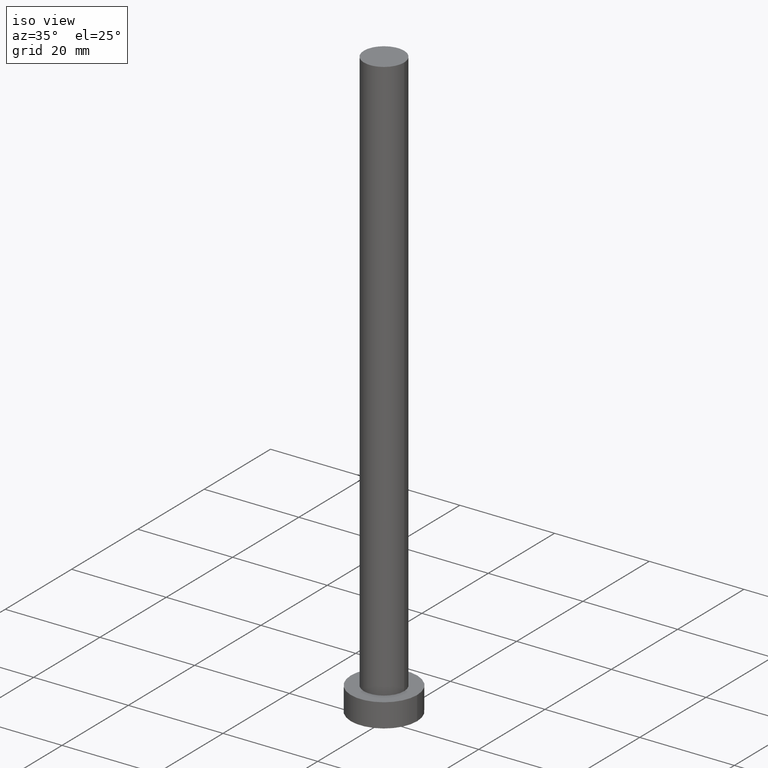
[diagram: clean part render]
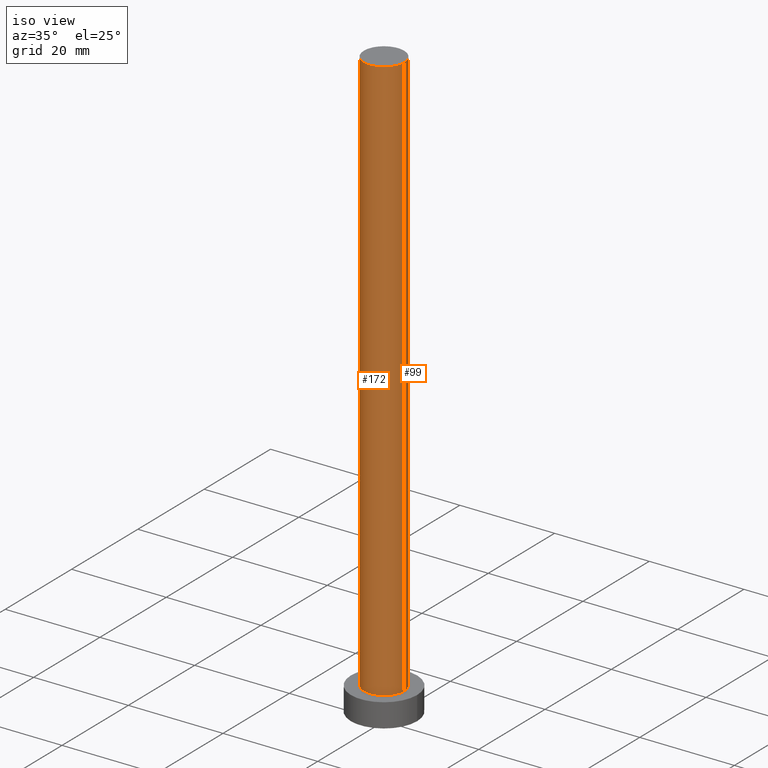
[diagram: same view with one multi-face feature highlighted, each face labeled with its STEP entity id]
A machine part, iso view. The highlighted faces form ONE feature: a constant-radius fillet chain: 2 tangent blend faces with common blend radius 4.25 mm. The faces share edges in the B-rep.
Their STEP definitions:
[1] entity #172 (Cylinder):
#1 = DIRECTION ( 'NONE',  ( 1.000000000000000000, 0.000000000000000000, 0.000000000000000000 ) ) ;
#4 = AXIS2_PLACEMENT_3D ( 'NONE', #98, #94, #60 ) ;
#7 = ORIENTED_EDGE ( 'NONE', *, *, #185, .F. ) ;
#16 = CARTESIAN_POINT ( 'NONE',  ( 0.000000000000000000, 0.000000000000000000, 125.0000000000000000 ) ) ;
#27 = CARTESIAN_POINT ( 'NONE',  ( 4.250000000000000000, 5.204748896376250699E-16, 125.0000000000000000 ) ) ;
#30 = ORIENTED_EDGE ( 'NONE', *, *, #36, .F. ) ;
#36 = EDGE_CURVE ( 'NONE', #67, #212, #215, .T. ) ;
#38 = EDGE_CURVE ( 'NONE', #47, #175, #245, .T. ) ;
#47 = VERTEX_POINT ( 'NONE', #135 ) ;
#60 = DIRECTION ( 'NONE',  ( -1.000000000000000000, 0.000000000000000000, 0.000000000000000000 ) ) ;
#66 = CARTESIAN_POINT ( 'NONE',  ( -4.250000000000000000, 0.000000000000000000, 125.0000000000000000 ) ) ;
#67 = VERTEX_POINT ( 'NONE', #27 ) ;
#74 = DIRECTION ( 'NONE',  ( 1.000000000000000000, 0.000000000000000000, 0.000000000000000000 ) ) ;
#93 = DIRECTION ( 'NONE',  ( 0.000000000000000000, 0.000000000000000000, 1.000000000000000000 ) ) ;
#94 = DIRECTION ( 'NONE',  ( -0.000000000000000000, -0.000000000000000000, -1.000000000000000000 ) ) ;
#98 = CARTESIAN_POINT ( 'NONE',  ( 0.000000000000000000, 0.000000000000000000, 125.0000000000000000 ) ) ;
#113 = CARTESIAN_POINT ( 'NONE',  ( 4.250000000000000000, 5.204748896376250699E-16, 125.0000000000000000 ) ) ;
#135 = CARTESIAN_POINT ( 'NONE',  ( -4.250000000000000000, 0.000000000000000000, 125.0000000000000000 ) ) ;
#140 = ORIENTED_EDGE ( 'NONE', *, *, #38, .T. ) ;
#145 = CARTESIAN_POINT ( 'NONE',  ( -4.250000000000000000, 0.000000000000000000, 5.000000000000000000 ) ) ;
#152 = ORIENTED_EDGE ( 'NONE', *, *, #240, .T. ) ;
#160 = CIRCLE ( 'NONE', #190, 4.250000000000000000 ) ;
#163 = VECTOR ( 'NONE', #177, 1000.000000000000000 ) ;
#165 = CARTESIAN_POINT ( 'NONE',  ( 4.250000000000000000, 5.204748896376250699E-16, 5.000000000000000000 ) ) ;
#172 = ADVANCED_FACE ( 'NONE', ( #184 ), #200, .T. ) ;
#175 = VERTEX_POINT ( 'NONE', #145 ) ;
#177 = DIRECTION ( 'NONE',  ( -0.000000000000000000, -0.000000000000000000, -1.000000000000000000 ) ) ;
#180 = VECTOR ( 'NONE', #248, 1000.000000000000000 ) ;
#184 = FACE_OUTER_BOUND ( 'NONE', #224, .T. ) ;
#185 = EDGE_CURVE ( 'NONE', #47, #67, #160, .T. ) ;
#187 = DIRECTION ( 'NONE',  ( 0.000000000000000000, 0.000000000000000000, 1.000000000000000000 ) ) ;
#190 = AXIS2_PLACEMENT_3D ( 'NONE', #16, #187, #1 ) ;
#193 = CIRCLE ( 'NONE', #202, 4.250000000000000000 ) ;
#200 = CYLINDRICAL_SURFACE ( 'NONE', #4, 4.250000000000000000 ) ;
#202 = AXIS2_PLACEMENT_3D ( 'NONE', #221, #93, #74 ) ;
#212 = VERTEX_POINT ( 'NONE', #165 ) ;
#215 = LINE ( 'NONE', #113, #163 ) ;
#221 = CARTESIAN_POINT ( 'NONE',  ( 0.000000000000000000, 0.000000000000000000, 5.000000000000000000 ) ) ;
#224 = EDGE_LOOP ( 'NONE', ( #30, #7, #140, #152 ) ) ;
#240 = EDGE_CURVE ( 'NONE', #175, #212, #193, .T. ) ;
#245 = LINE ( 'NONE', #66, #180 ) ;
#248 = DIRECTION ( 'NONE',  ( -0.000000000000000000, -0.000000000000000000, -1.000000000000000000 ) ) ;
[2] entity #99 (Cylinder):
#15 = DIRECTION ( 'NONE',  ( 1.000000000000000000, 0.000000000000000000, 0.000000000000000000 ) ) ;
#24 = ORIENTED_EDGE ( 'NONE', *, *, #80, .T. ) ;
#27 = CARTESIAN_POINT ( 'NONE',  ( 4.250000000000000000, 5.204748896376250699E-16, 125.0000000000000000 ) ) ;
#36 = EDGE_CURVE ( 'NONE', #67, #212, #215, .T. ) ;
#37 = CARTESIAN_POINT ( 'NONE',  ( 0.000000000000000000, 0.000000000000000000, 125.0000000000000000 ) ) ;
#38 = EDGE_CURVE ( 'NONE', #47, #175, #245, .T. ) ;
#47 = VERTEX_POINT ( 'NONE', #135 ) ;
#57 = DIRECTION ( 'NONE',  ( 0.000000000000000000, 0.000000000000000000, 1.000000000000000000 ) ) ;
#66 = CARTESIAN_POINT ( 'NONE',  ( -4.250000000000000000, 0.000000000000000000, 125.0000000000000000 ) ) ;
#67 = VERTEX_POINT ( 'NONE', #27 ) ;
#73 = CARTESIAN_POINT ( 'NONE',  ( 0.000000000000000000, 0.000000000000000000, 125.0000000000000000 ) ) ;
#80 = EDGE_CURVE ( 'NONE', #212, #175, #139, .T. ) ;
#99 = ADVANCED_FACE ( 'NONE', ( #204 ), #203, .T. ) ;
#111 = ORIENTED_EDGE ( 'NONE', *, *, #38, .F. ) ;
#113 = CARTESIAN_POINT ( 'NONE',  ( 4.250000000000000000, 5.204748896376250699E-16, 125.0000000000000000 ) ) ;
#116 = DIRECTION ( 'NONE',  ( -1.000000000000000000, 0.000000000000000000, 0.000000000000000000 ) ) ;
#120 = DIRECTION ( 'NONE',  ( 1.000000000000000000, 0.000000000000000000, 0.000000000000000000 ) ) ;
#132 = AXIS2_PLACEMENT_3D ( 'NONE', #73, #253, #116 ) ;
#135 = CARTESIAN_POINT ( 'NONE',  ( -4.250000000000000000, 0.000000000000000000, 125.0000000000000000 ) ) ;
#139 = CIRCLE ( 'NONE', #209, 4.250000000000000000 ) ;
#145 = CARTESIAN_POINT ( 'NONE',  ( -4.250000000000000000, 0.000000000000000000, 5.000000000000000000 ) ) ;
#146 = EDGE_CURVE ( 'NONE', #67, #47, #181, .T. ) ;
#163 = VECTOR ( 'NONE', #177, 1000.000000000000000 ) ;
#165 = CARTESIAN_POINT ( 'NONE',  ( 4.250000000000000000, 5.204748896376250699E-16, 5.000000000000000000 ) ) ;
#175 = VERTEX_POINT ( 'NONE', #145 ) ;
#177 = DIRECTION ( 'NONE',  ( -0.000000000000000000, -0.000000000000000000, -1.000000000000000000 ) ) ;
#180 = VECTOR ( 'NONE', #248, 1000.000000000000000 ) ;
#181 = CIRCLE ( 'NONE', #242, 4.250000000000000000 ) ;
#192 = ORIENTED_EDGE ( 'NONE', *, *, #146, .F. ) ;
#203 = CYLINDRICAL_SURFACE ( 'NONE', #132, 4.250000000000000000 ) ;
#204 = FACE_OUTER_BOUND ( 'NONE', #232, .T. ) ;
#209 = AXIS2_PLACEMENT_3D ( 'NONE', #220, #218, #120 ) ;
#211 = ORIENTED_EDGE ( 'NONE', *, *, #36, .T. ) ;
#212 = VERTEX_POINT ( 'NONE', #165 ) ;
#215 = LINE ( 'NONE', #113, #163 ) ;
#218 = DIRECTION ( 'NONE',  ( 0.000000000000000000, 0.000000000000000000, 1.000000000000000000 ) ) ;
#220 = CARTESIAN_POINT ( 'NONE',  ( 0.000000000000000000, 0.000000000000000000, 5.000000000000000000 ) ) ;
#232 = EDGE_LOOP ( 'NONE', ( #192, #211, #24, #111 ) ) ;
#242 = AXIS2_PLACEMENT_3D ( 'NONE', #37, #57, #15 ) ;
#245 = LINE ( 'NONE', #66, #180 ) ;
#248 = DIRECTION ( 'NONE',  ( -0.000000000000000000, -0.000000000000000000, -1.000000000000000000 ) ) ;
#253 = DIRECTION ( 'NONE',  ( -0.000000000000000000, -0.000000000000000000, -1.000000000000000000 ) ) ;